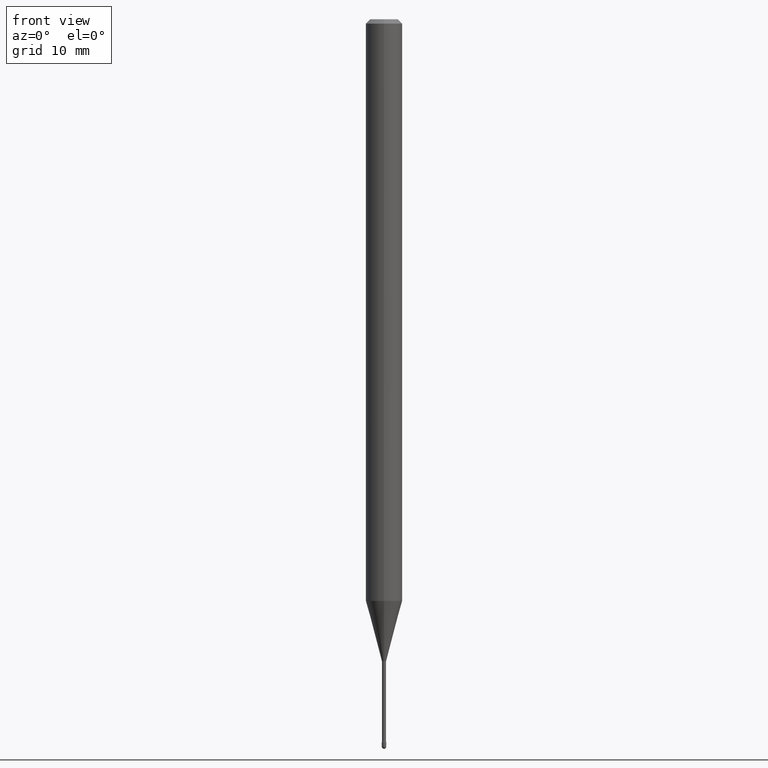
[diagram: clean part render]
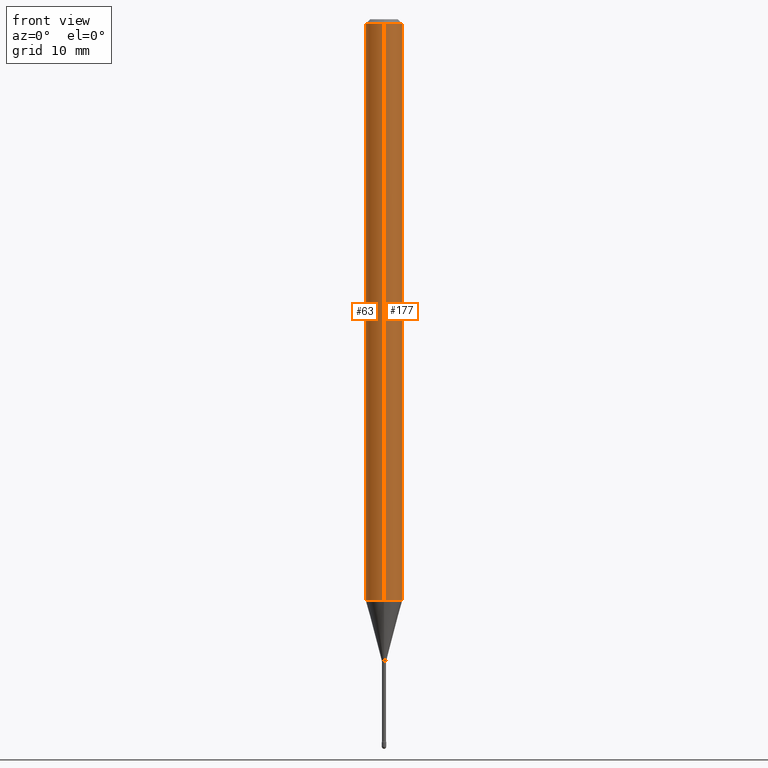
[diagram: same view with one multi-face feature highlighted, each face labeled with its STEP entity id]
A machine part, front view. The highlighted faces form ONE feature: a constant-radius fillet chain: 2 tangent blend faces with common blend radius 1.5875 mm. The faces share edges in the B-rep.
Their STEP definitions:
[1] entity #63 (Cylinder):
#15 = DIRECTION ( 'NONE',  ( -2.445459796286561515E-29, 3.491494241530715845E-15, 1.000000000000000000 ) ) ;
#22 = VECTOR ( 'NONE', #15, 39.37007874015748143 ) ;
#37 = VERTEX_POINT ( 'NONE', #198 ) ;
#63 = ADVANCED_FACE ( 'NONE', ( #543 ), #240, .T. ) ;
#86 = CARTESIAN_POINT ( 'NONE',  ( -4.364351673553429572E-16, -0.06250000000000695277, -1.993057782720305759 ) ) ;
#94 = EDGE_LOOP ( 'NONE', ( #383, #520, #183, #123 ) ) ;
#101 = DIRECTION ( 'NONE',  ( -6.982962677686265922E-15, -1.000000000000000000, 4.370956789862821150E-15 ) ) ;
#123 = ORIENTED_EDGE ( 'NONE', *, *, #555, .F. ) ;
#124 = EDGE_CURVE ( 'NONE', #328, #360, #430, .T. ) ;
#152 = DIRECTION ( 'NONE',  ( -2.445459796286561795E-29, 3.491494241530716239E-15, 1.000000000000000000 ) ) ;
#160 = CIRCLE ( 'NONE', #216, 0.06250000000000000000 ) ;
#183 = ORIENTED_EDGE ( 'NONE', *, *, #124, .T. ) ;
#186 = LINE ( 'NONE', #496, #22 ) ;
#198 = CARTESIAN_POINT ( 'NONE',  ( 4.440892098501111311E-16, 0.06249999999999304029, -1.993057782720306426 ) ) ;
#216 = AXIS2_PLACEMENT_3D ( 'NONE', #542, #244, #101 ) ;
#229 = AXIS2_PLACEMENT_3D ( 'NONE', #499, #362, #492 ) ;
#240 = CYLINDRICAL_SURFACE ( 'NONE', #289, 0.06250000000000000000 ) ;
#244 = DIRECTION ( 'NONE',  ( -2.445459796286561795E-29, 3.491494241530716239E-15, 1.000000000000000000 ) ) ;
#289 = AXIS2_PLACEMENT_3D ( 'NONE', #296, #152, #416 ) ;
#296 = CARTESIAN_POINT ( 'NONE',  ( -1.169113584055446105E-44, 1.669184350826100908E-30, 4.780733988912460139E-16 ) ) ;
#301 = DIRECTION ( 'NONE',  ( -2.445459796286561515E-29, 3.491494241530715845E-15, 1.000000000000000000 ) ) ;
#328 = VERTEX_POINT ( 'NONE', #86 ) ;
#347 = VECTOR ( 'NONE', #301, 39.37007874015748143 ) ;
#360 = VERTEX_POINT ( 'NONE', #402 ) ;
#362 = DIRECTION ( 'NONE',  ( -2.445459796286561795E-29, 3.491494241530716239E-15, 1.000000000000000000 ) ) ;
#383 = ORIENTED_EDGE ( 'NONE', *, *, #524, .F. ) ;
#402 = CARTESIAN_POINT ( 'NONE',  ( -4.364351673553912750E-16, -0.06250000000000005551, -0.01499999999999986587 ) ) ;
#416 = DIRECTION ( 'NONE',  ( -6.982962677686265922E-15, -1.000000000000000000, 3.491494241530715450E-15 ) ) ;
#430 = LINE ( 'NONE', #554, #347 ) ;
#435 = VERTEX_POINT ( 'NONE', #484 ) ;
#484 = CARTESIAN_POINT ( 'NONE',  ( 4.440892098501117228E-16, 0.06249999999999995837, -0.01500000000000030129 ) ) ;
#492 = DIRECTION ( 'NONE',  ( -6.982962677686265922E-15, -1.000000000000000000, 3.483106191921935554E-15 ) ) ;
#496 = CARTESIAN_POINT ( 'NONE',  ( 4.440892098500625669E-16, 0.06250000000000000000, 2.598550087955762983E-16 ) ) ;
#499 = CARTESIAN_POINT ( 'NONE',  ( 3.668189694429862924E-31, -5.237241362296103029E-17, -0.01500000000000008271 ) ) ;
#506 = EDGE_CURVE ( 'NONE', #37, #328, #160, .T. ) ;
#512 = CIRCLE ( 'NONE', #229, 0.06250000000000000000 ) ;
#520 = ORIENTED_EDGE ( 'NONE', *, *, #506, .T. ) ;
#524 = EDGE_CURVE ( 'NONE', #37, #435, #186, .T. ) ;
#542 = CARTESIAN_POINT ( 'NONE',  ( 4.873942679318546206E-29, -6.958749771405926605E-15, -1.993057782720306204 ) ) ;
#543 = FACE_OUTER_BOUND ( 'NONE', #94, .T. ) ;
#554 = CARTESIAN_POINT ( 'NONE',  ( -4.364351673553916201E-16, -0.06250000000000000000, 6.962917889869158282E-16 ) ) ;
#555 = EDGE_CURVE ( 'NONE', #435, #360, #512, .T. ) ;
[2] entity #177 (Cylinder):
#15 = DIRECTION ( 'NONE',  ( -2.445459796286561515E-29, 3.491494241530715845E-15, 1.000000000000000000 ) ) ;
#22 = VECTOR ( 'NONE', #15, 39.37007874015748143 ) ;
#37 = VERTEX_POINT ( 'NONE', #198 ) ;
#67 = CARTESIAN_POINT ( 'NONE',  ( 3.668189694429862924E-31, -5.237241362296103029E-17, -0.01500000000000008271 ) ) ;
#86 = CARTESIAN_POINT ( 'NONE',  ( -4.364351673553429572E-16, -0.06250000000000695277, -1.993057782720305759 ) ) ;
#107 = AXIS2_PLACEMENT_3D ( 'NONE', #474, #559, #252 ) ;
#117 = FACE_OUTER_BOUND ( 'NONE', #126, .T. ) ;
#118 = EDGE_CURVE ( 'NONE', #328, #37, #462, .T. ) ;
#124 = EDGE_CURVE ( 'NONE', #328, #360, #430, .T. ) ;
#126 = EDGE_LOOP ( 'NONE', ( #259, #321, #350, #256 ) ) ;
#168 = AXIS2_PLACEMENT_3D ( 'NONE', #204, #326, #466 ) ;
#177 = ADVANCED_FACE ( 'NONE', ( #117 ), #299, .T. ) ;
#186 = LINE ( 'NONE', #496, #22 ) ;
#198 = CARTESIAN_POINT ( 'NONE',  ( 4.440892098501111311E-16, 0.06249999999999304029, -1.993057782720306426 ) ) ;
#204 = CARTESIAN_POINT ( 'NONE',  ( 4.873942679318546206E-29, -6.958749771405926605E-15, -1.993057782720306204 ) ) ;
#239 = DIRECTION ( 'NONE',  ( -6.982962677686265922E-15, -1.000000000000000000, 3.483106191921935554E-15 ) ) ;
#252 = DIRECTION ( 'NONE',  ( -6.982962677686265922E-15, -1.000000000000000000, 3.491494241530715450E-15 ) ) ;
#256 = ORIENTED_EDGE ( 'NONE', *, *, #124, .F. ) ;
#259 = ORIENTED_EDGE ( 'NONE', *, *, #118, .T. ) ;
#299 = CYLINDRICAL_SURFACE ( 'NONE', #107, 0.06250000000000000000 ) ;
#301 = DIRECTION ( 'NONE',  ( -2.445459796286561515E-29, 3.491494241530715845E-15, 1.000000000000000000 ) ) ;
#321 = ORIENTED_EDGE ( 'NONE', *, *, #524, .T. ) ;
#326 = DIRECTION ( 'NONE',  ( -2.445459796286561795E-29, 3.491494241530716239E-15, 1.000000000000000000 ) ) ;
#328 = VERTEX_POINT ( 'NONE', #86 ) ;
#347 = VECTOR ( 'NONE', #301, 39.37007874015748143 ) ;
#350 = ORIENTED_EDGE ( 'NONE', *, *, #504, .F. ) ;
#360 = VERTEX_POINT ( 'NONE', #402 ) ;
#367 = DIRECTION ( 'NONE',  ( -2.445459796286561795E-29, 3.491494241530716239E-15, 1.000000000000000000 ) ) ;
#368 = AXIS2_PLACEMENT_3D ( 'NONE', #67, #367, #239 ) ;
#402 = CARTESIAN_POINT ( 'NONE',  ( -4.364351673553912750E-16, -0.06250000000000005551, -0.01499999999999986587 ) ) ;
#422 = CIRCLE ( 'NONE', #368, 0.06250000000000000000 ) ;
#430 = LINE ( 'NONE', #554, #347 ) ;
#435 = VERTEX_POINT ( 'NONE', #484 ) ;
#462 = CIRCLE ( 'NONE', #168, 0.06250000000000000000 ) ;
#466 = DIRECTION ( 'NONE',  ( -6.982962677686265922E-15, -1.000000000000000000, 4.370956789862821150E-15 ) ) ;
#474 = CARTESIAN_POINT ( 'NONE',  ( -1.169113584055446105E-44, 1.669184350826100908E-30, 4.780733988912460139E-16 ) ) ;
#484 = CARTESIAN_POINT ( 'NONE',  ( 4.440892098501117228E-16, 0.06249999999999995837, -0.01500000000000030129 ) ) ;
#496 = CARTESIAN_POINT ( 'NONE',  ( 4.440892098500625669E-16, 0.06250000000000000000, 2.598550087955762983E-16 ) ) ;
#504 = EDGE_CURVE ( 'NONE', #360, #435, #422, .T. ) ;
#524 = EDGE_CURVE ( 'NONE', #37, #435, #186, .T. ) ;
#554 = CARTESIAN_POINT ( 'NONE',  ( -4.364351673553916201E-16, -0.06250000000000000000, 6.962917889869158282E-16 ) ) ;
#559 = DIRECTION ( 'NONE',  ( -2.445459796286561795E-29, 3.491494241530716239E-15, 1.000000000000000000 ) ) ;